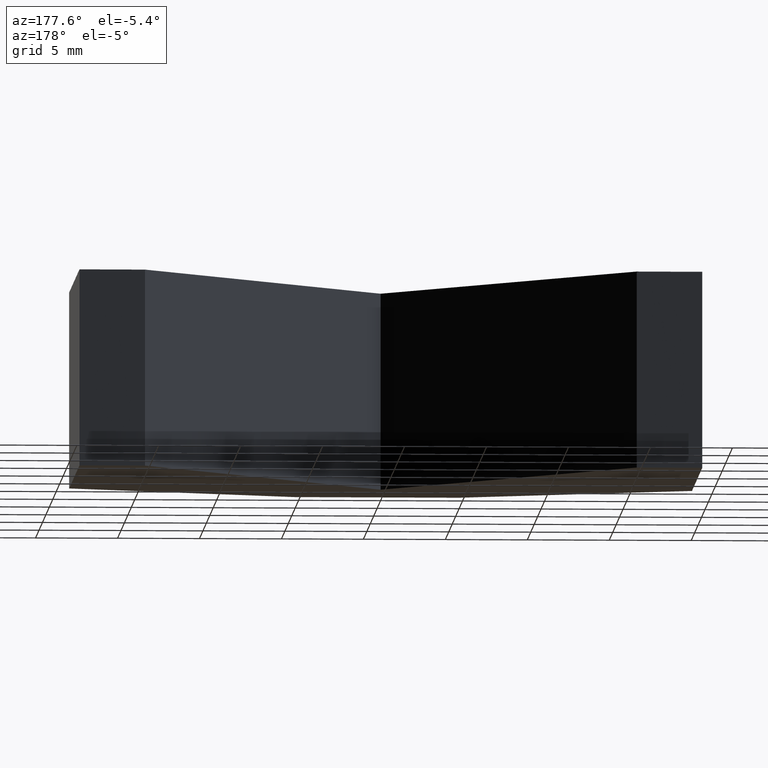
[diagram: clean part render]
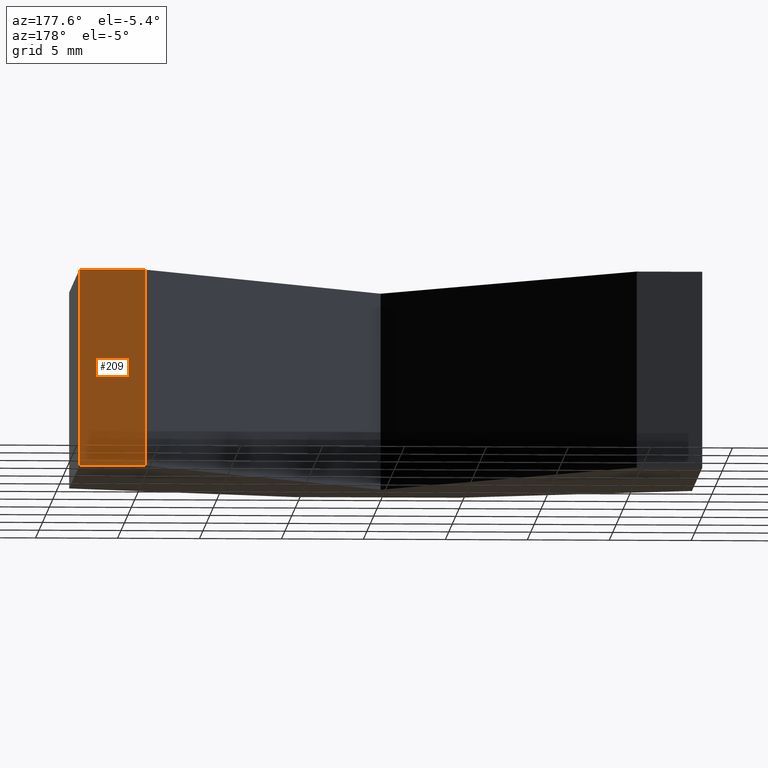
[diagram: same view with one face highlighted and labeled with its STEP entity id]
A machine part, auxiliary view. The second image highlights one B-rep face of the part: STEP entity #209.
In plain terms, the highlighted planar face has unit normal (0, 1, 0).
Its self-contained STEP definition (entity closure, byte-faithful):
#23=FACE_OUTER_BOUND('',#34,.T.);
#34=EDGE_LOOP('',(#170,#171,#172,#173));
#46=LINE('',#317,#73);
#59=LINE('',#343,#86);
#60=LINE('',#346,#87);
#61=LINE('',#347,#88);
#73=VECTOR('',#259,10.);
#86=VECTOR('',#284,10.);
#87=VECTOR('',#287,10.);
#88=VECTOR('',#288,10.);
#93=VERTEX_POINT('',#301);
#100=VERTEX_POINT('',#315);
#107=VERTEX_POINT('',#341);
#108=VERTEX_POINT('',#345);
#118=EDGE_CURVE('',#93,#100,#46,.T.);
#131=EDGE_CURVE('',#107,#100,#59,.T.);
#132=EDGE_CURVE('',#107,#108,#60,.T.);
#133=EDGE_CURVE('',#108,#93,#61,.T.);
#170=ORIENTED_EDGE('',*,*,#132,.T.);
#171=ORIENTED_EDGE('',*,*,#133,.T.);
#172=ORIENTED_EDGE('',*,*,#118,.T.);
#173=ORIENTED_EDGE('',*,*,#131,.F.);
#198=PLANE('',#243);
#209=ADVANCED_FACE('',(#23),#198,.T.);
#243=AXIS2_PLACEMENT_3D('',#344,#285,#286);
#259=DIRECTION('',(-1.,0.,0.));
#284=DIRECTION('',(0.,0.,-1.));
#285=DIRECTION('center_axis',(0.,1.,0.));
#286=DIRECTION('ref_axis',(0.,0.,1.));
#287=DIRECTION('',(1.,0.,0.));
#288=DIRECTION('',(0.,0.,-1.));
#301=CARTESIAN_POINT('',(19.,10.,-6.));
#315=CARTESIAN_POINT('',(15.,10.,-6.));
#317=CARTESIAN_POINT('',(15.,10.,-6.));
#341=CARTESIAN_POINT('',(15.,10.,6.));
#343=CARTESIAN_POINT('',(15.,10.,0.));
#344=CARTESIAN_POINT('Origin',(15.,10.,0.));
#345=CARTESIAN_POINT('',(19.,10.,6.));
#346=CARTESIAN_POINT('',(15.,10.,6.));
#347=CARTESIAN_POINT('',(19.,10.,0.));